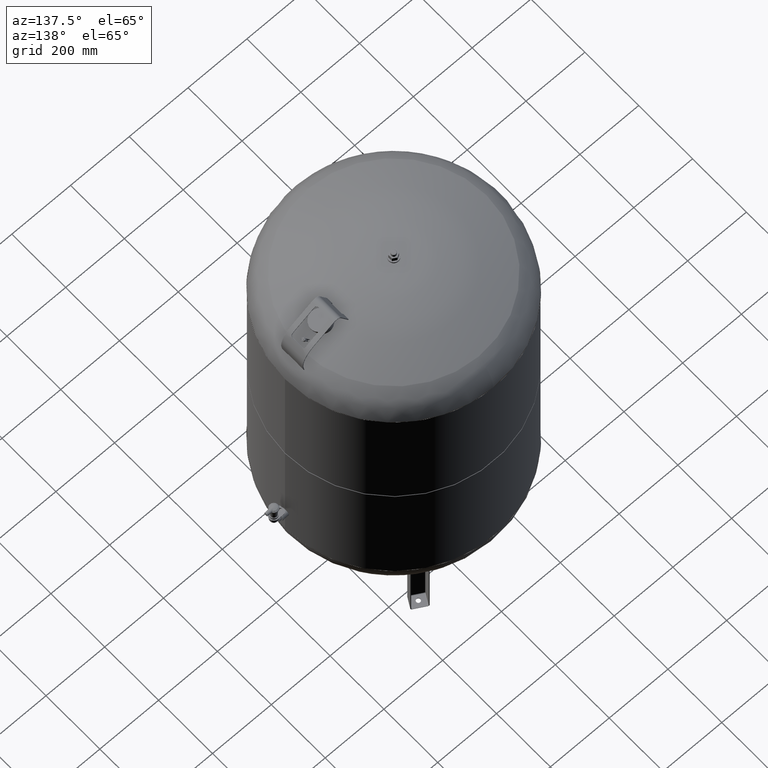
[diagram: clean part render]
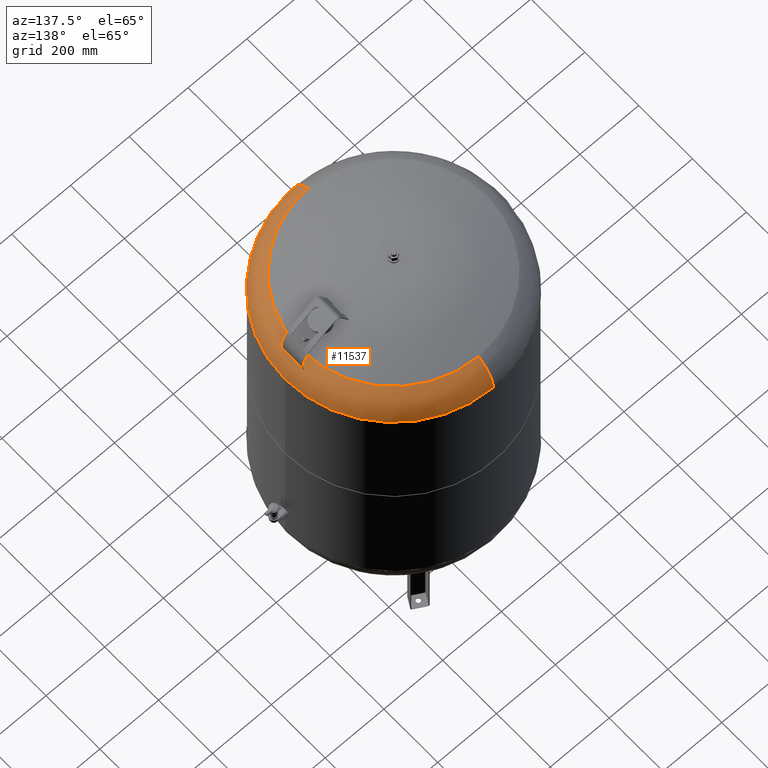
[diagram: same view with one face highlighted and labeled with its STEP entity id]
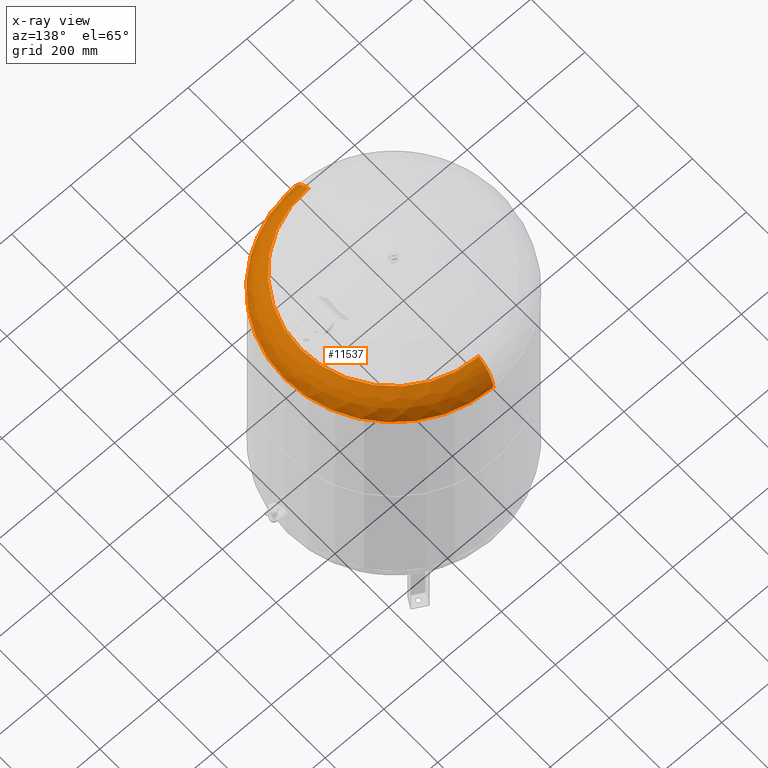
[diagram: x-ray of the same camera — body ghosted, the highlighted face saturated]
A machine part, auxiliary view. The second image highlights one B-rep face of the part: STEP entity #11537.
The next image is the same camera in x-ray: the body ghosted, the highlighted face saturated — about 0% of this face is hidden behind the body in this view.
In plain terms, the highlighted face is a freeform B-spline surface patch.
Its self-contained STEP definition (entity closure, byte-faithful):
#11420=CARTESIAN_POINT('',(370.0,1.062956E-014,1255.206120388130600));
#11421=VERTEX_POINT('',#11420);
#11428=CARTESIAN_POINT('',(0.0,-370.000000000000060,1255.206120388130600));
#11429=VERTEX_POINT('',#11428);
#11430=CARTESIAN_POINT('',(0.0,-3.468087E-014,1255.206120388130600));
#11431=DIRECTION('',(0.0,0.0,1.0));
#11432=DIRECTION('',(-1.0,0.0,0.0));
#11433=AXIS2_PLACEMENT_3D('',#11430,#11431,#11432);
#11434=CIRCLE('',#11433,370.0);
#11435=EDGE_CURVE('',#11429,#11421,#11434,.T.);
#11447=CARTESIAN_POINT('',(-1.702203E-014,139.000000000000060,1255.206120388130300));
#11448=CARTESIAN_POINT('',(-1.702203E-014,139.000000000000060,1370.706120388130300));
#11449=CARTESIAN_POINT('',(-3.116623E-014,254.500000000000000,1370.706120388130300));
#11450=CARTESIAN_POINT('',(-4.531044E-014,370.0,1370.706120388130300));
#11451=CARTESIAN_POINT('',(-4.531044E-014,369.999999999999940,1255.206120388130300));
#11452=CARTESIAN_POINT('',(-139.000000000000090,139.0,1255.206120388130300));
#11453=CARTESIAN_POINT('',(-139.000000000000060,139.0,1370.706120388130300));
#11454=CARTESIAN_POINT('',(-254.500000000000000,254.499999999999860,1370.706120388130300));
#11455=CARTESIAN_POINT('',(-370.0,369.999999999999890,1370.706120388130300));
#11456=CARTESIAN_POINT('',(-370.0,369.999999999999890,1255.206120388130300));
#11457=CARTESIAN_POINT('',(-139.000000000000090,-5.170290E-014,1255.206120388130300));
#11458=CARTESIAN_POINT('',(-139.000000000000060,-3.048590E-014,1370.706120388130300));
#11459=CARTESIAN_POINT('',(-254.500000000000000,-4.463010E-014,1370.706120388130300));
#11460=CARTESIAN_POINT('',(-370.0,-5.877430E-014,1370.706120388130300));
#11461=CARTESIAN_POINT('',(-370.0,-7.999131E-014,1255.206120388130300));
#11462=CARTESIAN_POINT('',(-139.000000000000030,-139.000000000000110,1255.206120388130300));
#11463=CARTESIAN_POINT('',(-139.0,-139.000000000000060,1370.706120388130300));
#11464=CARTESIAN_POINT('',(-254.499999999999910,-254.500000000000000,1370.706120388130300));
#11465=CARTESIAN_POINT('',(-369.999999999999890,-370.0,1370.706120388130300));
#11466=CARTESIAN_POINT('',(-369.999999999999890,-370.0,1255.206120388130300));
#11467=CARTESIAN_POINT('',(1.702203E-014,-139.000000000000110,1255.206120388130300));
#11468=CARTESIAN_POINT('',(1.702203E-014,-139.000000000000060,1370.706120388130300));
#11469=CARTESIAN_POINT('',(3.116623E-014,-254.500000000000000,1370.706120388130300));
#11470=CARTESIAN_POINT('',(4.531044E-014,-370.0,1370.706120388130300));
#11471=CARTESIAN_POINT('',(4.531044E-014,-370.000000000000060,1255.206120388130300));
#11472=CARTESIAN_POINT('',(139.000000000000090,-139.000000000000090,1255.206120388130300));
#11473=CARTESIAN_POINT('',(139.000000000000060,-139.000000000000030,1370.706120388130300));
#11474=CARTESIAN_POINT('',(254.500000000000000,-254.499999999999910,1370.706120388130300));
#11475=CARTESIAN_POINT('',(370.0,-369.999999999999890,1370.706120388130300));
#11476=CARTESIAN_POINT('',(370.0,-369.999999999999890,1255.206120388130300));
#11477=CARTESIAN_POINT('',(139.000000000000090,-1.765884E-014,1255.206120388130300));
#11478=CARTESIAN_POINT('',(139.000000000000060,3.558161E-015,1370.706120388130300));
#11479=CARTESIAN_POINT('',(254.500000000000000,1.770236E-014,1370.706120388130300));
#11480=CARTESIAN_POINT('',(370.0,3.184657E-014,1370.706120388130300));
#11481=CARTESIAN_POINT('',(370.0,1.062956E-014,1255.206120388130300));
#11482=CARTESIAN_POINT('',(139.000000000000030,139.000000000000030,1255.206120388130300));
#11483=CARTESIAN_POINT('',(139.0,139.000000000000030,1370.706120388130300));
#11484=CARTESIAN_POINT('',(254.499999999999910,254.500000000000000,1370.706120388130300));
#11485=CARTESIAN_POINT('',(369.999999999999890,370.0,1370.706120388130300));
#11486=CARTESIAN_POINT('',(369.999999999999890,369.999999999999890,1255.206120388130300));
#11487=CARTESIAN_POINT('',(-1.702203E-014,139.000000000000060,1255.206120388130300));
#11488=CARTESIAN_POINT('',(-1.702203E-014,139.000000000000060,1370.706120388130300));
#11489=CARTESIAN_POINT('',(-3.116623E-014,254.500000000000000,1370.706120388130300));
#11490=CARTESIAN_POINT('',(-4.531044E-014,370.0,1370.706120388130300));
#11491=CARTESIAN_POINT('',(-4.531044E-014,369.999999999999940,1255.206120388130300));
#11499=(BOUNDED_SURFACE()B_SPLINE_SURFACE(2,2,((#11447,#11452,#11457,#11462,#11467,#11472,#11477,#11482,#11487),(#11448,#11453,#11458,#11463,#11468,#11473,#11478,#11483,#11488),(#11449,#11454,#11459,#11464,#11469,#11474,#11479,#11484,#11489),(#11450,#11455,#11460,#11465,#11470,#11475,#11480,#11485,#11490),(#11451,#11456,#11461,#11466,#11471,#11476,#11481,#11486,#11491)),.UNSPECIFIED.,.F.,.T.,.U.)B_SPLINE_SURFACE_WITH_KNOTS((3,2,3),(3,2,2,2,3),(-3.141592653589794,-1.570796326794897,5.884666E-016),(0.0,1.570796326794897,3.141592653589793,4.712388980384690,6.283185307179586),.UNSPECIFIED.)GEOMETRIC_REPRESENTATION_ITEM()RATIONAL_B_SPLINE_SURFACE(((1.0,0.707106781186548,1.0,0.707106781186548,1.0,0.707106781186548,1.0,0.707106781186548,1.0),(0.707106781186545,0.499999999999998,0.707106781186545,0.499999999999998,0.707106781186545,0.499999999999998,0.707106781186545,0.499999999999998,0.707106781186545),(1.0,0.707106781186548,1.0,0.707106781186548,1.0,0.707106781186548,1.0,0.707106781186548,1.0),(0.707106781186545,0.499999999999999,0.707106781186545,0.499999999999999,0.707106781186545,0.499999999999999,0.707106781186545,0.499999999999999,0.707106781186545),(1.0,0.707106781186548,1.0,0.707106781186548,1.0,0.707106781186548,1.0,0.707106781186548,1.0)))REPRESENTATION_ITEM('')SURFACE());
#11500=CARTESIAN_POINT('',(0.0,-315.931034482758610,1353.014494274920500));
#11501=VERTEX_POINT('',#11500);
#11502=CARTESIAN_POINT('',(0.0,-254.500000000000060,1255.206120388130300));
#11503=DIRECTION('',(-1.0,0.0,0.0));
#11504=DIRECTION('',(0.0,-1.0,0.0));
#11505=AXIS2_PLACEMENT_3D('',#11502,#11503,#11504);
#11506=CIRCLE('',#11505,115.500000000000000);
#11507=EDGE_CURVE('',#11429,#11501,#11506,.T.);
#11508=ORIENTED_EDGE('',*,*,#11507,.F.);
#11509=ORIENTED_EDGE('',*,*,#11435,.T.);
#11510=CARTESIAN_POINT('',(-4.531044E-014,369.999999999999940,1255.206120388130300));
#11511=VERTEX_POINT('',#11510);
#11512=CARTESIAN_POINT('',(0.0,-3.468087E-014,1255.206120388130600));
#11513=DIRECTION('',(0.0,0.0,1.0));
#11514=DIRECTION('',(-1.0,0.0,0.0));
#11515=AXIS2_PLACEMENT_3D('',#11512,#11513,#11514);
#11516=CIRCLE('',#11515,370.0);
#11517=EDGE_CURVE('',#11421,#11511,#11516,.T.);
#11518=ORIENTED_EDGE('',*,*,#11517,.T.);
#11519=CARTESIAN_POINT('',(-3.868912E-014,315.931034482758610,1353.014494274920300));
#11520=VERTEX_POINT('',#11519);
#11521=CARTESIAN_POINT('',(-3.116623E-014,254.500000000000000,1255.206120388130300));
#11522=DIRECTION('',(1.0,0.0,0.0));
#11523=DIRECTION('',(0.0,1.0,0.0));
#11524=AXIS2_PLACEMENT_3D('',#11521,#11522,#11523);
#11525=CIRCLE('',#11524,115.500000000000000);
#11526=EDGE_CURVE('',#11511,#11520,#11525,.T.);
#11527=ORIENTED_EDGE('',*,*,#11526,.T.);
#11528=CARTESIAN_POINT('',(0.0,-1.671377E-014,1353.014494274920500));
#11529=DIRECTION('',(0.0,0.0,1.0));
#11530=DIRECTION('',(-1.0,0.0,0.0));
#11531=AXIS2_PLACEMENT_3D('',#11528,#11529,#11530);
#11532=CIRCLE('',#11531,315.931034482758610);
#11533=EDGE_CURVE('',#11501,#11520,#11532,.T.);
#11534=ORIENTED_EDGE('',*,*,#11533,.F.);
#11535=EDGE_LOOP('',(#11508,#11509,#11518,#11527,#11534));
#11536=FACE_OUTER_BOUND('',#11535,.T.);
#11537=ADVANCED_FACE('',(#11536),#11499,.T.);